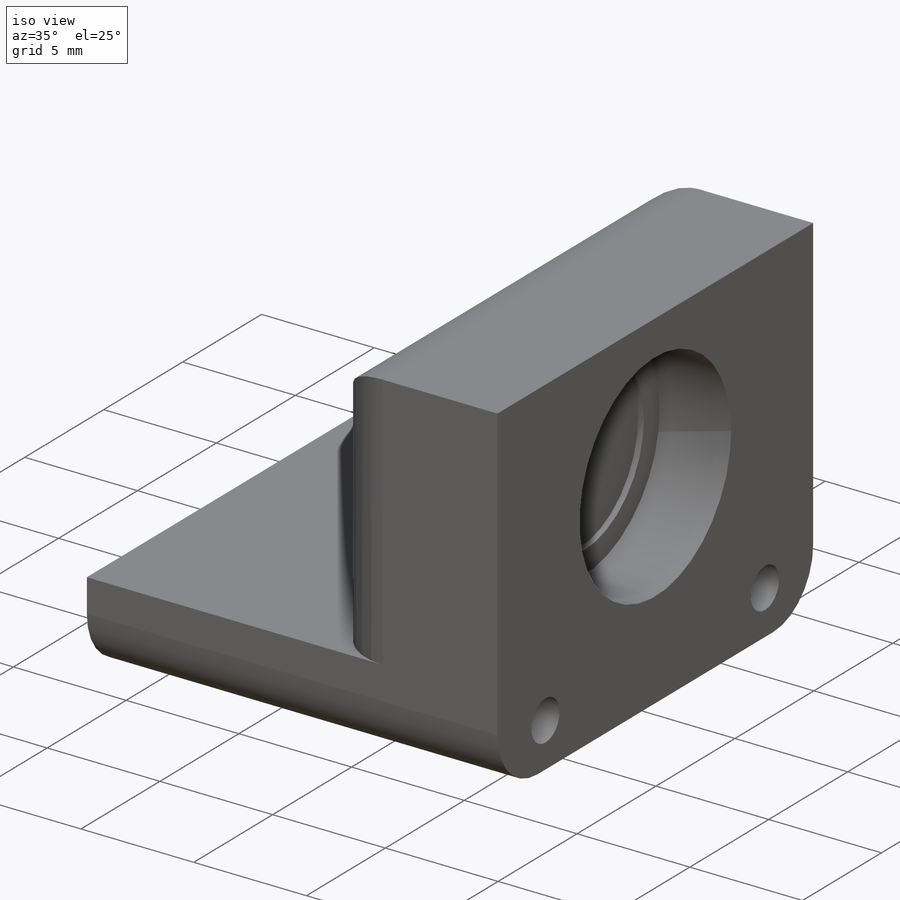
[diagram: iso view]
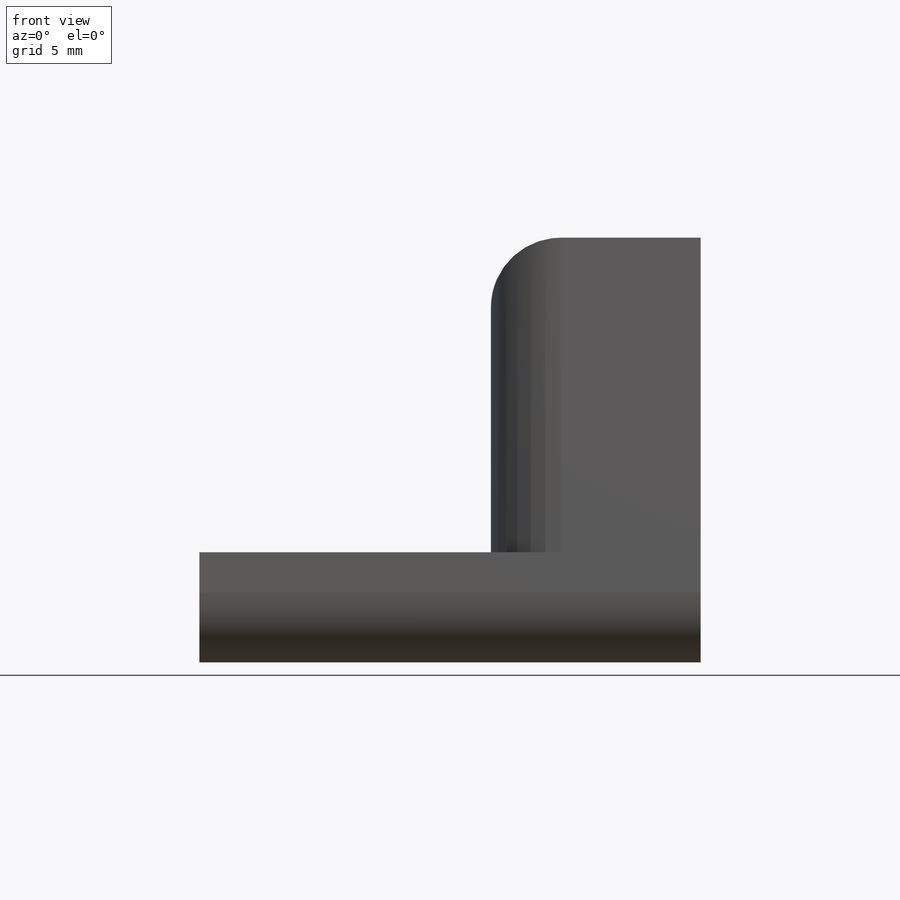
[diagram: front view]
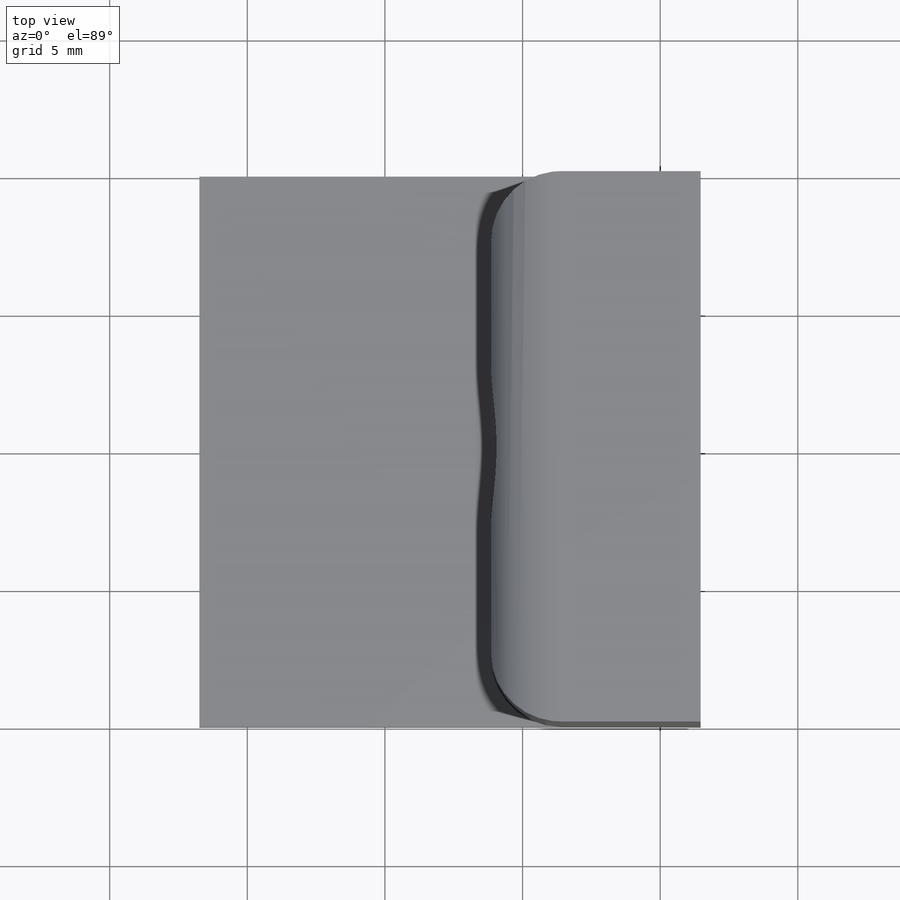
[diagram: top view]
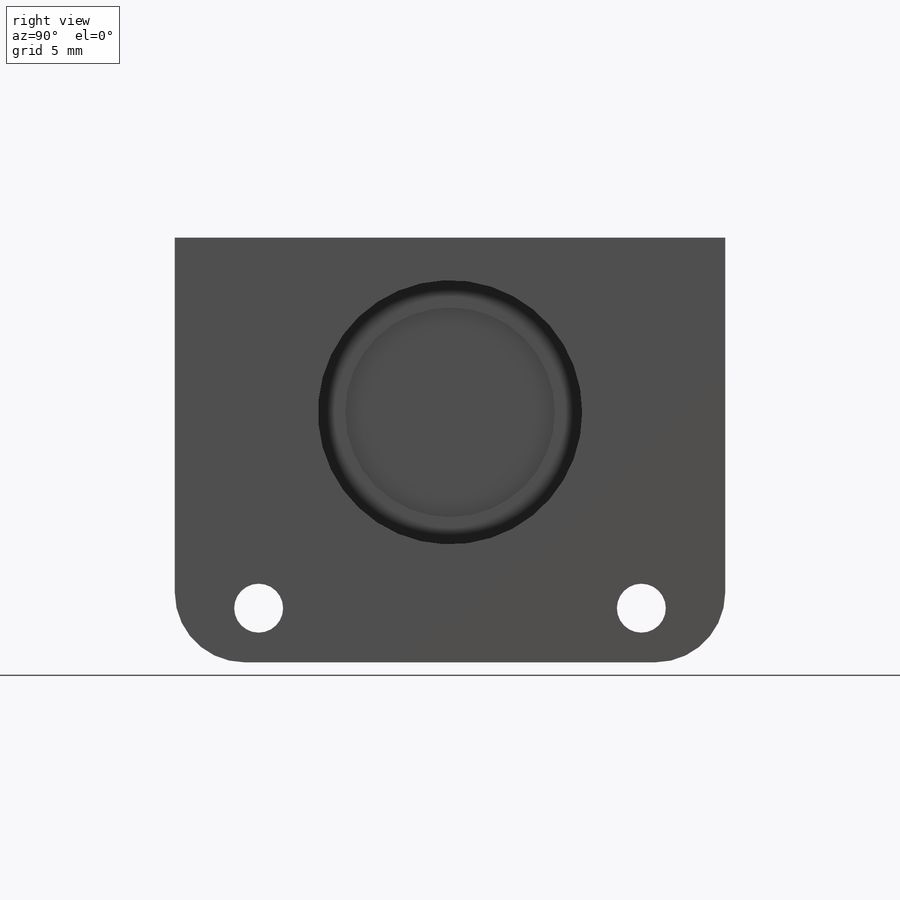
[diagram: right view]
SOLIDWORKS PART (.sldprt)
format: sldprt  version: not decoded by parser v0  size: 248,320 bytes
history: native  units: mm
features: sketch x9, cut_extrude x5, material x1, extrude x1, hole x1, fillet x1 (+12 scaffold rows collapsed)
feature tree (30):
  scaffold x12  (default folders/planes/origin — collapsed)
  material  "Material <not specified>"
  sketch  "Sketch1"  dims[D1=4.0mm D2=~18.211805mm D3=15.43mm D4=~10.591795mm]
  extrude  "Boss-Extrude1"  Depth=20mm
  sketch  "Sketch2"  dims[D1=2.54mm D2=2.286mm D3=2.0mm]
  cut_extrude  "Cut-Extrude1"  Depth=4mm
  sketch  "Sketch3"  dims[D1=5.08mm]
  cut_extrude  "Cut-Extrude2"  Depth=3.175mm
  sketch  "Sketch4"  dims[D1=~3.918407mm]
  cut_extrude  "Cut-Extrude3"  Depth=0.254mm
  sketch  "Sketch5"  dims[D2=9.6012mm D3=4.7625mm D1=5.08mm]
  cut_extrude  "Cut-Extrude4"  Depth=3.175mm
  sketch  "Sketch6"  dims[D1=~3.576752mm]
  cut_extrude  "Cut-Extrude5"  Depth=0.254mm
  sketch  "Sketch7"  dims[D1=2.032mm D2=3.048mm]
  hole  "CBORE for #0 Socket Head Cap Screw1"  Diameter=1.778mm Depth=18.211805mm
  sketch  "Sketch9"
  sketch  "Sketch8"  dims[hole-wizard template sketch: 42 standard entries collapsed; hole parameters kept: c12.Thru Hole Depth=~18.211805mm c12.C'Bore Dia.=3.175mm c12.C'Bore Depth=14.732mm]
  fillet  "Fillet1"  Radius=2.54mm
decode coverage: 16 of 17 modeling features carry decoded parameters
note: ~ marks probable driven/reference dimensions
note: suppression state not decoded; provenance and decode notes live in map.json
